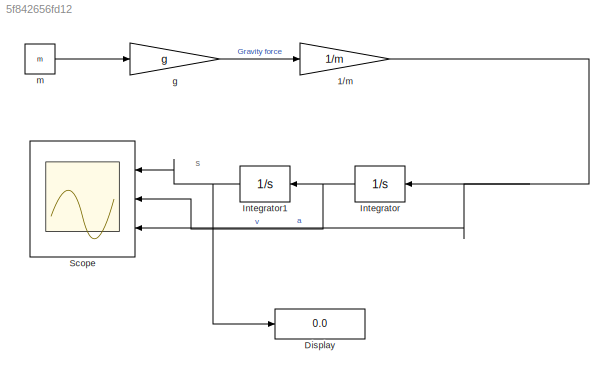
MODEL slx_5f842656fd12
KIND model
CONFIG AbsTol = auto
CONFIG FixedStep = 0.02
CONFIG MaxStep = auto
CONFIG MinStep = auto
CONFIG RelTol = 1e-3
CONFIG SampleTimeConstraint = Unconstrained
CONFIG Solver = ode1
CONFIG SolverMode = Auto
CONFIG SolverName = ode1
CONFIG StartTime = 0.0
CONFIG StopTime = 10.0
WORKSPACE source: MAT-file member
WORKSPACE g = 9.81
BLOCK [Gain] 1//m
  Gain = 1/m
  OutDataTypeStr = Inherit: Inherit via internal rule
  ParamDataTypeStr = Inherit: Inherit via internal rule
  SaturateOnIntegerOverflow = off
BLOCK [Display] Display
  Decimation = 1
  Ports = [1]
BLOCK [Integrator] Integrator
  AttributesFormatString = S0 = %<InitialCondition>
  Ports = [1, 1]
BLOCK [Integrator] Integrator1
  Ports = [1, 1]
BLOCK [Scope] Scope
  NumInputPorts = 3
  Ports = [3]
  ScopeSpecificationString = Simulink.scopes.TimeScopeBlockCfg('CurrentConfiguration', extmgr.ConfigurationSet(extmgr.Configuration('Core','General UI',true),extmgr.Configuration('Core','Source UI',true),extmgr.Configuration('Sources','WiredSimulink',true,'DataLogging',true,'DataLoggingVariableName','Position','DataLoggingDecimateData',true,'DataLoggingDecimation','1','DataLoggingSaveFormat','StructureWithTime'),extmgr.Config...<+2811ch>
BLOCK [Gain] g
  Gain = g
  OutDataTypeStr = Inherit: Inherit via internal rule
  ParamDataTypeStr = Inherit: Inherit via internal rule
  SaturateOnIntegerOverflow = off
BLOCK [Constant] m
  Value = m
ANNOTATION (root): s
NET 1//m:1 -> Integrator:1, Scope:3
NET Integrator1:1 -> Display:1, Scope:1
NET Integrator:1 -> Integrator1:1, Scope:2
LINE g:1 -> 1//m:1
LINE m:1 -> g:1
note: NET lines group one-source signal fan-out (src -> all destinations, sorted); 1:1 wires keep LINE
